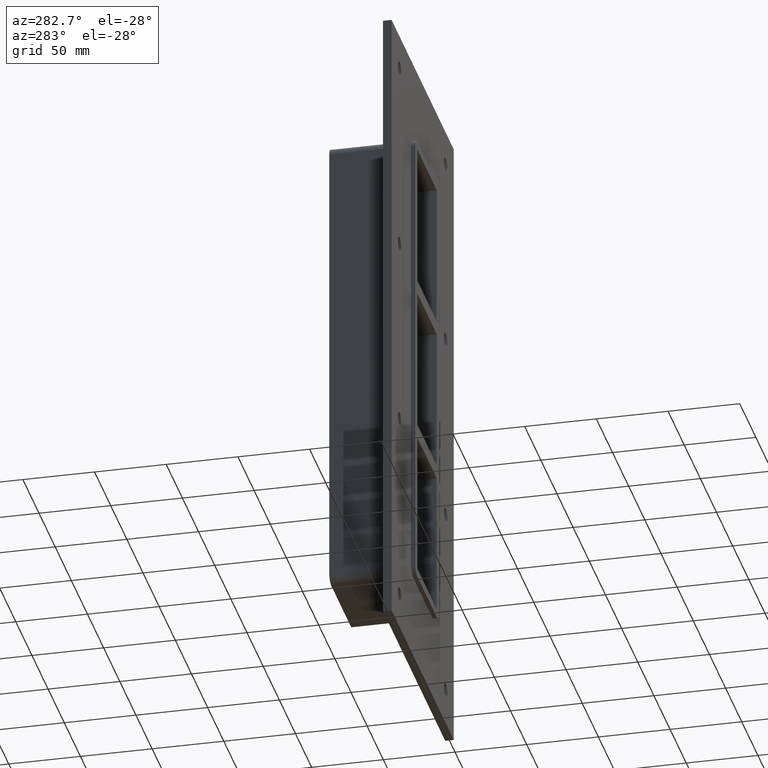
[diagram: clean part render]
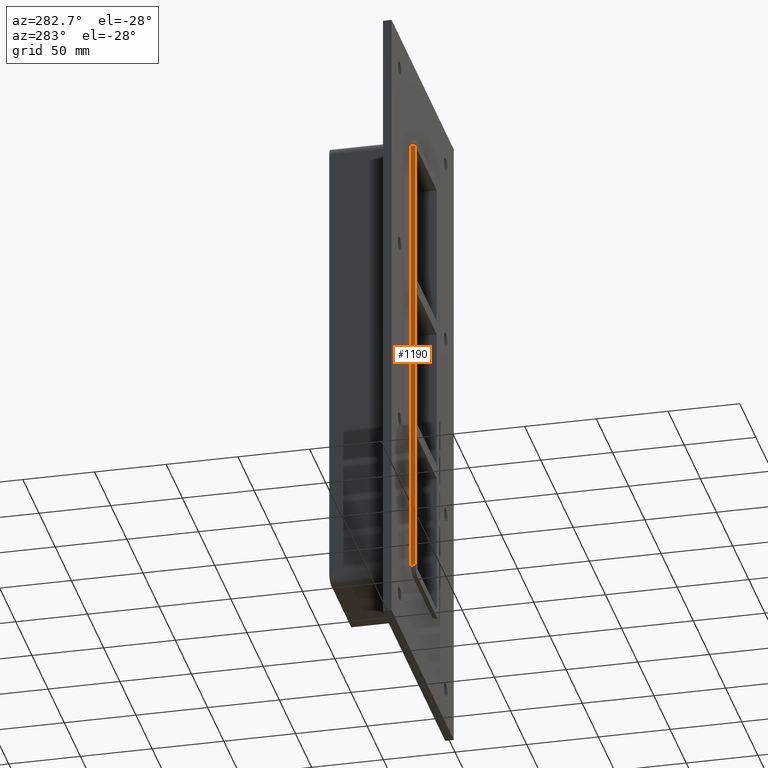
[diagram: same view with one face highlighted and labeled with its STEP entity id]
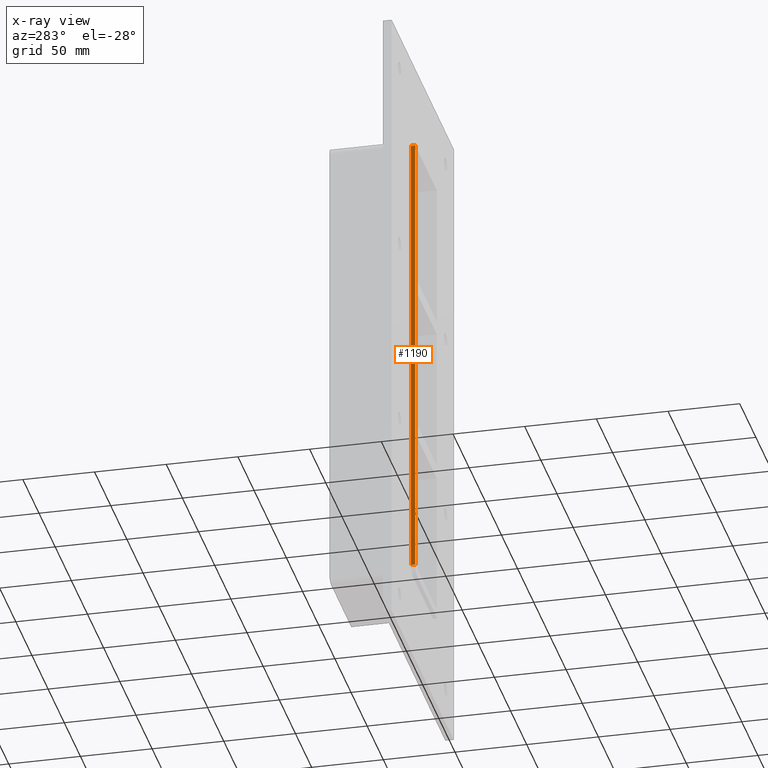
[diagram: x-ray of the same camera — body ghosted, the highlighted face saturated]
A machine part, auxiliary view. The second image highlights one B-rep face of the part: STEP entity #1190.
The next image is the same camera in x-ray: the body ghosted, the highlighted face saturated — about 0% of this face is hidden behind the body in this view.
In plain terms, the highlighted planar face has unit normal (-1, 0, 0).
Its self-contained STEP definition (entity closure, byte-faithful):
#788=CARTESIAN_POINT('',(-36.25,0.0,161.5));
#789=VERTEX_POINT('',#788);
#839=CARTESIAN_POINT('',(-36.25,0.0,-161.5));
#840=VERTEX_POINT('',#839);
#848=CARTESIAN_POINT('',(-36.25,0.0,161.5));
#849=DIRECTION('',(0.0,0.0,-1.0));
#850=VECTOR('',#849,323.0);
#851=LINE('',#848,#850);
#852=EDGE_CURVE('',#789,#840,#851,.T.);
#1099=CARTESIAN_POINT('',(-36.25,-3.0,-161.5));
#1100=VERTEX_POINT('',#1099);
#1108=CARTESIAN_POINT('',(-36.25,-3.0,-161.5));
#1109=DIRECTION('',(0.0,1.0,0.0));
#1110=VECTOR('',#1109,3.0);
#1111=LINE('',#1108,#1110);
#1112=EDGE_CURVE('',#1100,#840,#1111,.T.);
#1167=CARTESIAN_POINT('',(-36.25,0.0,-167.5));
#1168=DIRECTION('',(-1.0,0.0,0.0));
#1169=DIRECTION('',(0.0,0.0,1.0));
#1170=AXIS2_PLACEMENT_3D('',#1167,#1168,#1169);
#1171=PLANE('',#1170);
#1172=ORIENTED_EDGE('',*,*,#852,.T.);
#1173=ORIENTED_EDGE('',*,*,#1112,.F.);
#1174=CARTESIAN_POINT('',(-36.25,-3.0,161.5));
#1175=VERTEX_POINT('',#1174);
#1176=CARTESIAN_POINT('',(-36.25,-3.0,161.5));
#1177=DIRECTION('',(0.0,0.0,-1.0));
#1178=VECTOR('',#1177,323.0);
#1179=LINE('',#1176,#1178);
#1180=EDGE_CURVE('',#1175,#1100,#1179,.T.);
#1181=ORIENTED_EDGE('',*,*,#1180,.F.);
#1182=CARTESIAN_POINT('',(-36.25,0.0,161.5));
#1183=DIRECTION('',(0.0,-1.0,0.0));
#1184=VECTOR('',#1183,3.0);
#1185=LINE('',#1182,#1184);
#1186=EDGE_CURVE('',#789,#1175,#1185,.T.);
#1187=ORIENTED_EDGE('',*,*,#1186,.F.);
#1188=EDGE_LOOP('',(#1172,#1173,#1181,#1187));
#1189=FACE_OUTER_BOUND('',#1188,.T.);
#1190=ADVANCED_FACE('',(#1189),#1171,.T.);